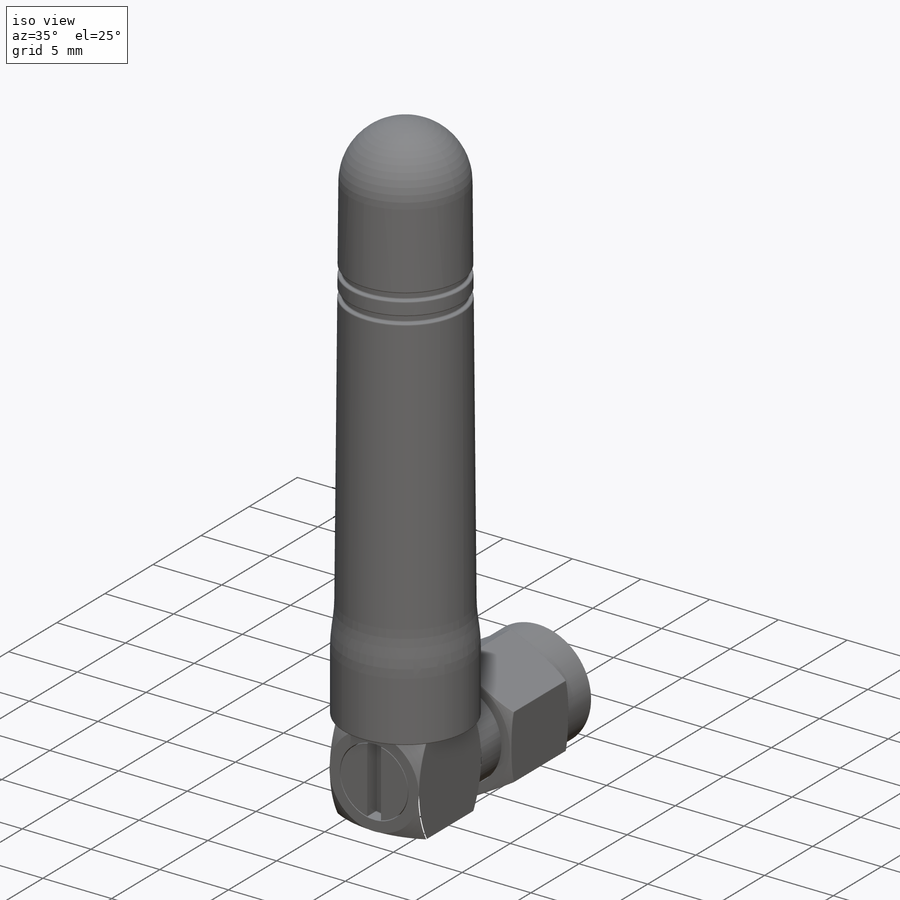
[diagram: iso view]
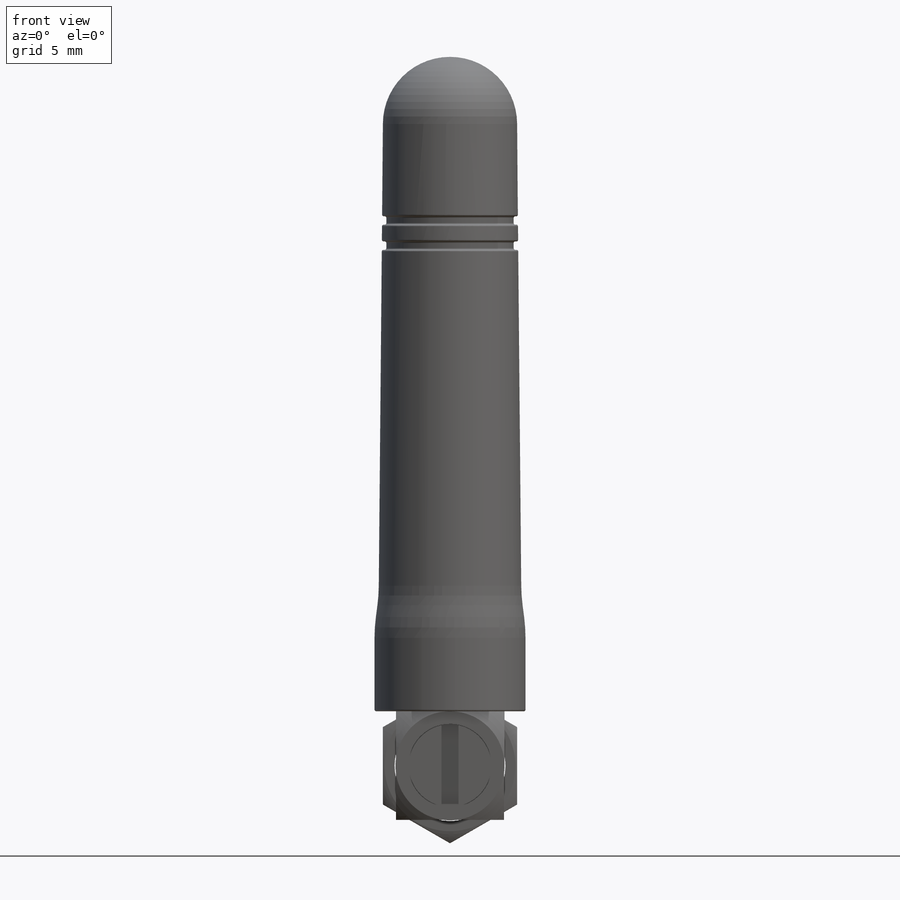
[diagram: front view]
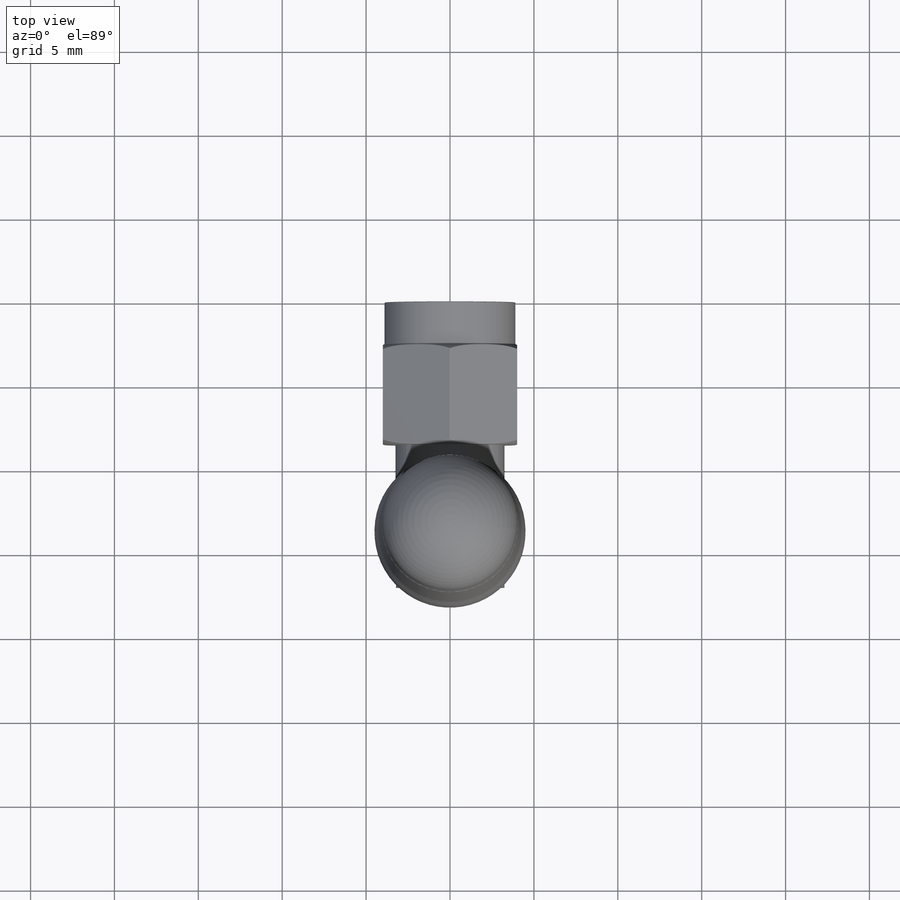
[diagram: top view]
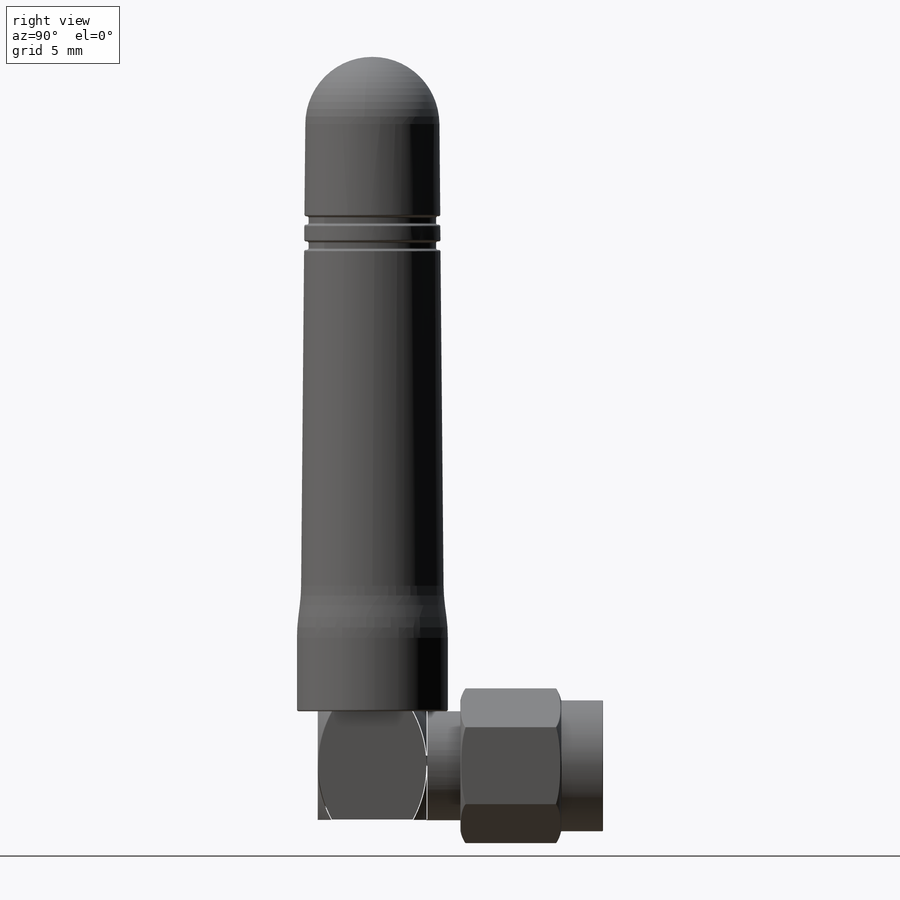
[diagram: right view]
SOLIDWORKS PART (.sldprt)
format: sldprt  version: not decoded by parser v0  size: 826,880 bytes
history: native  units: mm
features: sketch x9, plane x6, extrude x5, fillet x3, material x1, revolve x1, cut_revolve x1, cut_extrude x1, chamfer x1 (+9 scaffold rows collapsed)
feature tree (37):
  scaffold x9  (default folders/planes/origin — collapsed)
  material  "Material <not specified>"
  plane  "Спереди"
  plane  "Сверху"
  plane  "Справа"
  sketch  "Эскиз1"  dims[D1=7.8mm D2=6.6mm]
  extrude  "Бобышка-Вытянуть1"  Depth=2.5mm
  sketch  "Эскиз2"  dims[D1=8.0mm D2=0.0mm]
  extrude  "Бобышка-Вытянуть2"  Depth=6mm
  plane  "Плоскость1"  Offset=3mm
  sketch  "Эскиз3"  dims[D1=6.5mm]
  extrude  "Бобышка-Вытянуть4"  Depth=7.5mm
  sketch  "Эскиз4"  dims[D1=6.5mm]
  extrude  "Бобышка-Вытянуть5"  Depth=6.5mm
  plane  "Плоскость2"  Offset=3.25mm
  sketch  "Эскиз6"  dims[c1.D3=~9.539284mm c1.D11=4.0mm c1.D1=5.0mm c1.D2=4.5mm c2.D3=34.0mm c2.D4=4.2mm c2.D5=4.2mm c3.D3=30.0mm c3.D4=4.0mm c3.D5=4.25mm c3.D1=4.25mm c4.D5=30.0mm c4.D6=5.0mm c4.D7=27.5mm c4.D8=0.5mm c4.D9=1.0mm c4.D10=0.5mm c5.D10=~0.509729deg c6.D10=3.8mm c6.D5=34.0mm c6.D12=5.5mm]
  revolve  "Повернуть1"  Angle=360deg
  sketch  "Эскиз7"
  plane  "Плоскость3"
  sketch  "Эскиз9"  dims[c1.D2=2.0mm c1.D1=0.3mm c2.D2=~0.718802mm c2.D3=~0.834589mm c2.D4=1.5mm c2.D5=4.6mm]
  cut_revolve  "Вырез-Повернуть2"  Angle=360deg
  sketch  "Эскиз10"  dims[D1=5.0mm D2=4.9mm D3=1.0mm]
  cut_extrude  "Вырез-Вытянуть1"  Depth=1mm
  fillet  "Скругление1"  Radius=0.1mm
  fillet  "Скругление3"  Radius=0.05mm
  fillet  "Скругление4"  Radius=0.05mm
  sketch  "Эскиз11"  dims[D1=1.0mm]
  extrude  "Бобышка-Вытянуть6"  Depth=2.5mm
  chamfer  "Фаска1"  Distance=0.5mm Angle=55deg
decode coverage: 20 of 21 modeling features carry decoded parameters
note: ~ marks probable driven/reference dimensions
note: suppression state not decoded; provenance and decode notes live in map.json
